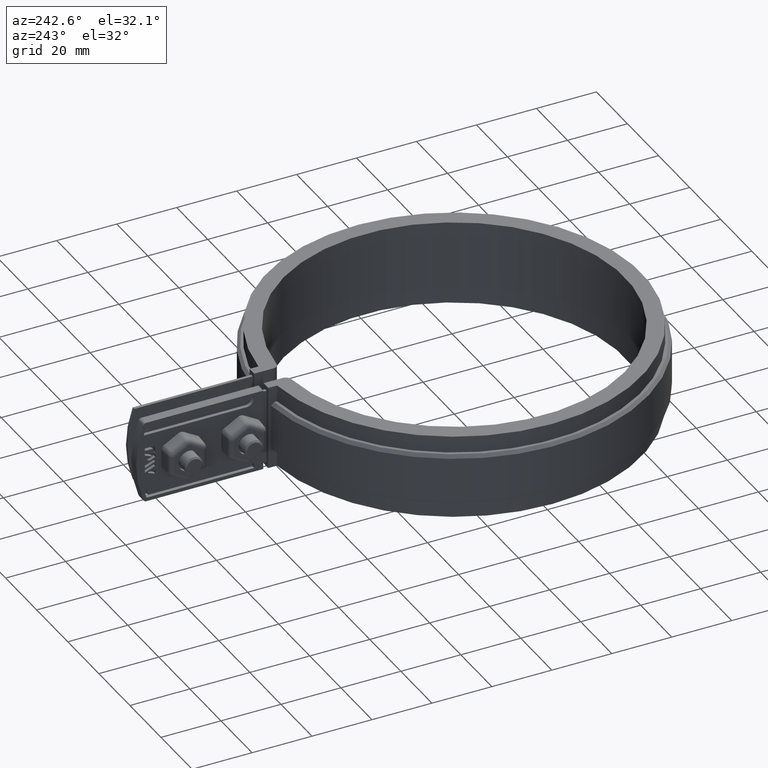
[diagram: clean part render]
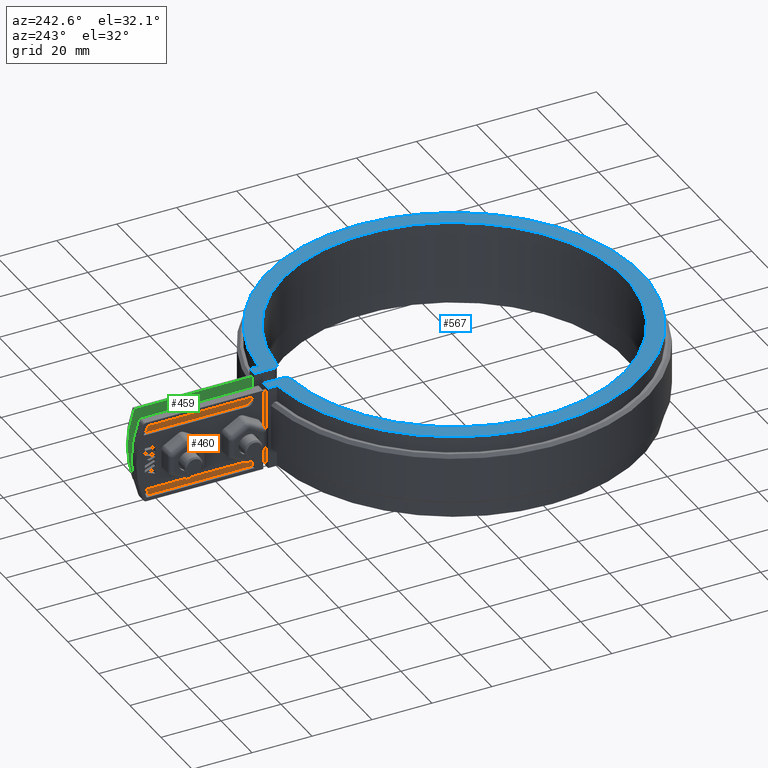
[diagram: same view with three faces highlighted in distinct colors, each labeled with its STEP entity id]
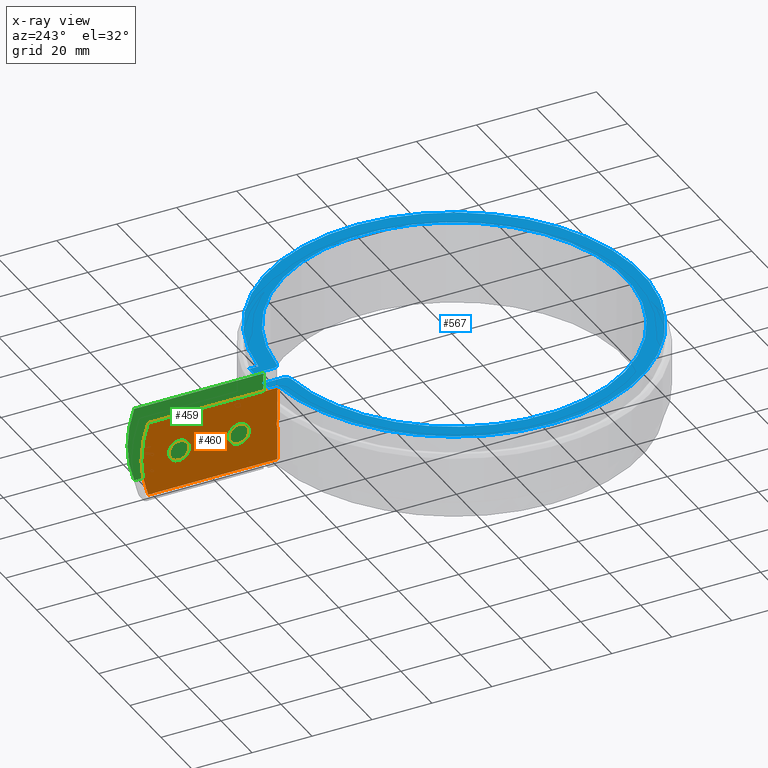
[diagram: x-ray of the same camera — body ghosted, the three highlighted faces saturated]
A machine part, auxiliary view with three faces highlighted in distinct colors.
The next image is the same camera in x-ray (body ghosted, the three faces saturated) — at least one of them is partly hidden behind the body in this view.
Their STEP definitions:

[orange] entity #460 — the highlighted planar face has unit normal (-1, 0, 0).
#460 = ADVANCED_FACE( '', ( #819, #820, #821 ), #822, .T. );
#819 = FACE_OUTER_BOUND( '', #1584, .T. );
#820 = FACE_BOUND( '', #1585, .T. );
#821 = FACE_BOUND( '', #1586, .T. );
#822 = PLANE( '', #1587 );
#1584 = EDGE_LOOP( '', ( #3172, #3173, #3174, #3175, #3176, #3177 ) );
#1585 = EDGE_LOOP( '', ( #3178 ) );
#1586 = EDGE_LOOP( '', ( #3179 ) );
#1587 = AXIS2_PLACEMENT_3D( '', #3180, #3181, #3182 );
#3172 = ORIENTED_EDGE( '', *, *, #6956, .F. );
#3173 = ORIENTED_EDGE( '', *, *, #6957, .T. );
#3174 = ORIENTED_EDGE( '', *, *, #6958, .F. );
#3175 = ORIENTED_EDGE( '', *, *, #6959, .T. );
#3176 = ORIENTED_EDGE( '', *, *, #6960, .T. );
#3177 = ORIENTED_EDGE( '', *, *, #6961, .T. );
#3178 = ORIENTED_EDGE( '', *, *, #6962, .T. );
#3179 = ORIENTED_EDGE( '', *, *, #6963, .T. );
#3180 = CARTESIAN_POINT( '', ( -4.99999999999999, 106.901303715507, -12.5000000000000 ) );
#3181 = DIRECTION( '', ( -1.00000000000000, 6.13499765894237E-017, 0.000000000000000 ) );
#3182 = DIRECTION( '', ( 6.13499765894237E-017, 1.00000000000000, 0.000000000000000 ) );
#6956 = EDGE_CURVE( '', #7905, #7906, #7907, .T. );
#6957 = EDGE_CURVE( '', #7905, #7908, #7909, .T. );
#6958 = EDGE_CURVE( '', #7910, #7908, #7911, .T. );
#6959 = EDGE_CURVE( '', #7910, #7912, #7913, .T. );
#6960 = EDGE_CURVE( '', #7912, #7914, #7915, .T. );
#6961 = EDGE_CURVE( '', #7914, #7906, #7916, .T. );
#6962 = EDGE_CURVE( '', #7917, #7917, #7918, .F. );
#6963 = EDGE_CURVE( '', #7919, #7919, #7920, .F. );
#7905 = VERTEX_POINT( '', #9478 );
#7906 = VERTEX_POINT( '', #9479 );
#7907 = B_SPLINE_CURVE_WITH_KNOTS( '', 3, ( #9480, #9481, #9482, #9483, #9484, #9485, #9486, #9487 ), .UNSPECIFIED., .F., .F., ( 4, 2, 2, 4 ), ( 6.50521303491303E-019, 0.00150022658167004, 0.00225033987250506, 0.00300045316334007 ), .UNSPECIFIED. );
#7908 = VERTEX_POINT( '', #9488 );
#7909 = LINE( '', #9489, #9490 );
#7910 = VERTEX_POINT( '', #9491 );
#7911 = LINE( '', #9492, #9493 );
#7912 = VERTEX_POINT( '', #9494 );
#7913 = CIRCLE( '', #9495, 36.0000000000000 );
#7914 = VERTEX_POINT( '', #9496 );
#7915 = LINE( '', #9497, #9498 );
#7916 = LINE( '', #9499, #9500 );
#7917 = VERTEX_POINT( '', #9501 );
#7918 = CIRCLE( '', #9502, 3.50000000000000 );
#7919 = VERTEX_POINT( '', #9503 );
#7920 = CIRCLE( '', #9504, 3.50000000000000 );
#9478 = CARTESIAN_POINT( '', ( -5.00000000000000, 61.6035713250458, 1.49472198519496 ) );
#9479 = CARTESIAN_POINT( '', ( -5.00000000000000, 61.6035713250458, -1.49472198519355 ) );
#9480 = CARTESIAN_POINT( '', ( -5.00000000000000, 61.6035713250458, 1.49472198519496 ) );
#9481 = CARTESIAN_POINT( '', ( -5.00000000000000, 61.7313907547541, 1.00388261558438 ) );
#9482 = CARTESIAN_POINT( '', ( -4.99999999999999, 61.7965111292352, 0.507584838703716 ) );
#9483 = CARTESIAN_POINT( '', ( -4.99999999999999, 61.7972551695541, -0.245300853509248 ) );
#9484 = CARTESIAN_POINT( '', ( -4.99999999999999, 61.7808408024274, -0.499093984818925 ) );
#9485 = CARTESIAN_POINT( '', ( -4.99999999999999, 61.7158527910326, -1.00096895216962 ) );
#9486 = CARTESIAN_POINT( '', ( -5.00000000000000, 61.6675116061577, -1.24918492290720 ) );
#9487 = CARTESIAN_POINT( '', ( -5.00000000000000, 61.6035713250458, -1.49472198519355 ) );
#9488 = CARTESIAN_POINT( '', ( -5.00000000000000, 61.6035713250458, 12.5000000000000 ) );
#9489 = CARTESIAN_POINT( '', ( -5.00000000000000, 61.6035713250458, -12.5000000000000 ) );
#9490 = VECTOR( '', #13860, 1000.00000000000 );
#9491 = CARTESIAN_POINT( '', ( -4.99999999999999, 104.661487364297, 12.5000000000000 ) );
#9492 = CARTESIAN_POINT( '', ( -4.99999999999999, 106.901303715507, 12.5000000000000 ) );
#9493 = VECTOR( '', #13861, 1000.00000000000 );
#9494 = CARTESIAN_POINT( '', ( -4.99999999999999, 104.661487364297, -12.5000000000000 ) );
#9495 = AXIS2_PLACEMENT_3D( '', #13862, #13863, #13864 );
#9496 = CARTESIAN_POINT( '', ( -5.00000000000000, 61.6035713250458, -12.5000000000000 ) );
#9497 = CARTESIAN_POINT( '', ( -4.99999999999999, 106.901303715507, -12.5000000000000 ) );
#9498 = VECTOR( '', #13865, 1000.00000000000 );
#9499 = CARTESIAN_POINT( '', ( -5.00000000000000, 61.6035713250458, -12.5000000000000 ) );
#9500 = VECTOR( '', #13866, 1000.00000000000 );
#9501 = CARTESIAN_POINT( '', ( -4.99999999999999, 90.9013037155070, -1.73472347597681E-015 ) );
#9502 = AXIS2_PLACEMENT_3D( '', #13867, #13868, #13869 );
#9503 = CARTESIAN_POINT( '', ( -4.99999999999999, 70.9013037155070, -1.73472347597681E-015 ) );
#9504 = AXIS2_PLACEMENT_3D( '', #13870, #13871, #13872 );
#13860 = DIRECTION( '', ( 0.000000000000000, 0.000000000000000, 1.00000000000000 ) );
#13861 = DIRECTION( '', ( -6.13499765894237E-017, -1.00000000000000, 0.000000000000000 ) );
#13862 = CARTESIAN_POINT( '', ( -5.00000000000000, 70.9013037155070, 0.000000000000000 ) );
#13863 = DIRECTION( '', ( -1.00000000000000, 6.13499765894237E-017, 0.000000000000000 ) );
#13864 = DIRECTION( '', ( -6.13499765894237E-017, -1.00000000000000, 0.000000000000000 ) );
#13865 = DIRECTION( '', ( -6.13499765894237E-017, -1.00000000000000, 0.000000000000000 ) );
#13866 = DIRECTION( '', ( 0.000000000000000, 0.000000000000000, 1.00000000000000 ) );
#13867 = CARTESIAN_POINT( '', ( -4.99999999999999, 94.4013037155071, -1.73472347597681E-015 ) );
#13868 = DIRECTION( '', ( -1.00000000000000, 6.13499765894237E-017, 0.000000000000000 ) );
#13869 = DIRECTION( '', ( -6.13499765894237E-017, -1.00000000000000, 0.000000000000000 ) );
#13870 = CARTESIAN_POINT( '', ( -4.99999999999999, 74.4013037155070, -1.73472347597681E-015 ) );
#13871 = DIRECTION( '', ( -1.00000000000000, 6.13499765894237E-017, 0.000000000000000 ) );
#13872 = DIRECTION( '', ( -6.13499765894237E-017, -1.00000000000000, 0.000000000000000 ) );

[blue] entity #567 — the highlighted planar face has unit normal (0, 0, -1).
#567 = ADVANCED_FACE( '', ( #1048 ), #1049, .F. );
#1048 = FACE_OUTER_BOUND( '', #2367, .T. );
#1049 = PLANE( '', #2368 );
#2367 = EDGE_LOOP( '', ( #4973, #4974, #4975, #4976, #4977, #4978, #4979, #4980, #4981, #4982 ) );
#2368 = AXIS2_PLACEMENT_3D( '', #4983, #4984, #4985 );
#4973 = ORIENTED_EDGE( '', *, *, #7297, .T. );
#4974 = ORIENTED_EDGE( '', *, *, #7287, .T. );
#4975 = ORIENTED_EDGE( '', *, *, #7237, .T. );
#4976 = ORIENTED_EDGE( '', *, *, #7245, .T. );
#4977 = ORIENTED_EDGE( '', *, *, #7226, .T. );
#4978 = ORIENTED_EDGE( '', *, *, #7253, .T. );
#4979 = ORIENTED_EDGE( '', *, *, #7298, .T. );
#4980 = ORIENTED_EDGE( '', *, *, #7200, .T. );
#4981 = ORIENTED_EDGE( '', *, *, #7299, .T. );
#4982 = ORIENTED_EDGE( '', *, *, #7300, .T. );
#4983 = CARTESIAN_POINT( '', ( 5.23473201317391, 60.6634495591627, 14.0000000000000 ) );
#4984 = DIRECTION( '', ( 0.000000000000000, 0.000000000000000, -1.00000000000000 ) );
#4985 = DIRECTION( '', ( 0.112903225806450, 0.993605989113642, 0.000000000000000 ) );
#7200 = EDGE_CURVE( '', #8329, #8330, #8331, .T. );
#7226 = EDGE_CURVE( '', #8368, #8366, #8369, .T. );
#7237 = EDGE_CURVE( '', #8390, #8388, #8391, .T. );
#7245 = EDGE_CURVE( '', #8388, #8368, #8404, .T. );
#7253 = EDGE_CURVE( '', #8366, #8416, #8418, .T. );
#7287 = EDGE_CURVE( '', #8472, #8390, #8473, .T. );
#7297 = EDGE_CURVE( '', #8487, #8472, #8488, .T. );
#7298 = EDGE_CURVE( '', #8416, #8329, #8489, .T. );
#7299 = EDGE_CURVE( '', #8330, #8490, #8491, .T. );
#7300 = EDGE_CURVE( '', #8490, #8487, #8492, .T. );
#8329 = VERTEX_POINT( '', #12084 );
#8330 = VERTEX_POINT( '', #12085 );
#8331 = CIRCLE( '', #12086, 2.00000000000000 );
#8366 = VERTEX_POINT( '', #12144 );
#8368 = VERTEX_POINT( '', #12147 );
#8369 = LINE( '', #12148, #12149 );
#8388 = VERTEX_POINT( '', #12183 );
#8390 = VERTEX_POINT( '', #12186 );
#8391 = LINE( '', #12187, #12188 );
#8404 = CIRCLE( '', #12204, 62.5000000000000 );
#8416 = VERTEX_POINT( '', #12217 );
#8418 = LINE( '', #12220, #12221 );
#8472 = VERTEX_POINT( '', #12304 );
#8473 = LINE( '', #12305, #12306 );
#8487 = VERTEX_POINT( '', #12327 );
#8488 = LINE( '', #12328, #12329 );
#8489 = LINE( '', #12330, #12331 );
#8490 = VERTEX_POINT( '', #12332 );
#8491 = CIRCLE( '', #12333, 57.0000000000000 );
#8492 = CIRCLE( '', #12334, 2.00000000000000 );
#12084 = CARTESIAN_POINT( '', ( 3.00000000000000, 58.7877538267963, 14.0000000000000 ) );
#12085 = CARTESIAN_POINT( '', ( 4.83050847457626, 56.7949486123287, 14.0000000000000 ) );
#12086 = AXIS2_PLACEMENT_3D( '', #14096, #14097, #14098 );
#12144 = CARTESIAN_POINT( '', ( 6.00000000000000, 65.1500000000000, 14.0000000000000 ) );
#12147 = CARTESIAN_POINT( '', ( 6.00000000000003, 62.2113333726259, 14.0000000000000 ) );
#12148 = CARTESIAN_POINT( '', ( 6.00000000000000, 62.2113333726259, 14.0000000000000 ) );
#12149 = VECTOR( '', #14129, 1000.00000000000 );
#12183 = CARTESIAN_POINT( '', ( -6.00000000000000, 62.2113333726259, 14.0000000000000 ) );
#12186 = CARTESIAN_POINT( '', ( -5.99999999999999, 65.1500000000000, 14.0000000000000 ) );
#12187 = CARTESIAN_POINT( '', ( -6.00000000000000, 65.1500000000000, 14.0000000000000 ) );
#12188 = VECTOR( '', #14137, 1000.00000000000 );
#12204 = AXIS2_PLACEMENT_3D( '', #14153, #14154, #14155 );
#12217 = CARTESIAN_POINT( '', ( 3.00000000000001, 65.1500000000000, 14.0000000000000 ) );
#12220 = CARTESIAN_POINT( '', ( 6.00000000000003, 65.1500000000000, 14.0000000000000 ) );
#12221 = VECTOR( '', #14173, 1000.00000000000 );
#12304 = CARTESIAN_POINT( '', ( -2.99999999999995, 65.1500000000000, 14.0000000000000 ) );
#12305 = CARTESIAN_POINT( '', ( -4.99999999999999, 65.1500000000000, 14.0000000000000 ) );
#12306 = VECTOR( '', #14230, 1000.00000000000 );
#12327 = CARTESIAN_POINT( '', ( -2.99999999999995, 58.7877538267963, 14.0000000000000 ) );
#12328 = CARTESIAN_POINT( '', ( -2.99999999999995, 58.7877538267963, 14.0000000000000 ) );
#12329 = VECTOR( '', #14244, 1000.00000000000 );
#12330 = CARTESIAN_POINT( '', ( 3.00000000000000, 65.1500000000000, 14.0000000000000 ) );
#12331 = VECTOR( '', #14245, 1000.00000000000 );
#12332 = CARTESIAN_POINT( '', ( -4.83050847457618, 56.7949486123287, 14.0000000000000 ) );
#12333 = AXIS2_PLACEMENT_3D( '', #14246, #14247, #14248 );
#12334 = AXIS2_PLACEMENT_3D( '', #14249, #14250, #14251 );
#14096 = CARTESIAN_POINT( '', ( 5.00000000000000, 58.7877538267963, 14.0000000000000 ) );
#14097 = DIRECTION( '', ( 0.000000000000000, 0.000000000000000, 1.00000000000000 ) );
#14098 = DIRECTION( '', ( -1.00000000000000, 1.23512311489549E-015, 0.000000000000000 ) );
#14129 = DIRECTION( '', ( 4.16333634234434E-017, 1.00000000000000, 0.000000000000000 ) );
#14137 = DIRECTION( '', ( -4.16333634234434E-017, -1.00000000000000, 0.000000000000000 ) );
#14153 = CARTESIAN_POINT( '', ( -8.67361737988404E-016, -6.93889390390723E-015, 14.0000000000000 ) );
#14154 = DIRECTION( '', ( 0.000000000000000, 0.000000000000000, 1.00000000000000 ) );
#14155 = DIRECTION( '', ( 1.00000000000000, -4.16333634234434E-017, 0.000000000000000 ) );
#14173 = DIRECTION( '', ( -1.00000000000000, 1.38777878078145E-017, 0.000000000000000 ) );
#14230 = DIRECTION( '', ( -1.00000000000000, 1.38777878078145E-017, 0.000000000000000 ) );
#14244 = DIRECTION( '', ( 0.000000000000000, 1.00000000000000, 0.000000000000000 ) );
#14245 = DIRECTION( '', ( 0.000000000000000, -1.00000000000000, 0.000000000000000 ) );
#14246 = CARTESIAN_POINT( '', ( 2.60208521396521E-015, 3.46944695195361E-014, 14.0000000000000 ) );
#14247 = DIRECTION( '', ( 0.000000000000000, 0.000000000000000, -1.00000000000000 ) );
#14248 = DIRECTION( '', ( 1.00000000000000, 0.000000000000000, 0.000000000000000 ) );
#14249 = CARTESIAN_POINT( '', ( -4.99999999999995, 58.7877538267963, 14.0000000000000 ) );
#14250 = DIRECTION( '', ( 0.000000000000000, 0.000000000000000, 1.00000000000000 ) );
#14251 = DIRECTION( '', ( 1.00000000000000, -1.19348975147204E-015, 0.000000000000000 ) );

[green] entity #459 — the highlighted planar face has unit normal (-1, -0, 0).
#459 = ADVANCED_FACE( '', ( #815, #816, #817 ), #818, .T. );
#815 = FACE_BOUND( '', #1580, .T. );
#816 = FACE_BOUND( '', #1581, .T. );
#817 = FACE_OUTER_BOUND( '', #1582, .T. );
#818 = PLANE( '', #1583 );
#1580 = EDGE_LOOP( '', ( #3163 ) );
#1581 = EDGE_LOOP( '', ( #3164 ) );
#1582 = EDGE_LOOP( '', ( #3165, #3166, #3167, #3168 ) );
#1583 = AXIS2_PLACEMENT_3D( '', #3169, #3170, #3171 );
#3163 = ORIENTED_EDGE( '', *, *, #6950, .T. );
#3164 = ORIENTED_EDGE( '', *, *, #6951, .T. );
#3165 = ORIENTED_EDGE( '', *, *, #6952, .T. );
#3166 = ORIENTED_EDGE( '', *, *, #6953, .F. );
#3167 = ORIENTED_EDGE( '', *, *, #6954, .T. );
#3168 = ORIENTED_EDGE( '', *, *, #6955, .T. );
#3169 = CARTESIAN_POINT( '', ( 4.00000000000000, 106.901303715507, -12.5000000000000 ) );
#3170 = DIRECTION( '', ( -1.00000000000000, -6.13499765894237E-017, 0.000000000000000 ) );
#3171 = DIRECTION( '', ( -6.13499765894237E-017, 1.00000000000000, 0.000000000000000 ) );
#6950 = EDGE_CURVE( '', #7893, #7893, #7894, .F. );
#6951 = EDGE_CURVE( '', #7895, #7895, #7896, .F. );
#6952 = EDGE_CURVE( '', #7897, #7898, #7899, .T. );
#6953 = EDGE_CURVE( '', #7900, #7898, #7901, .T. );
#6954 = EDGE_CURVE( '', #7900, #7902, #7903, .T. );
#6955 = EDGE_CURVE( '', #7902, #7897, #7904, .T. );
#7893 = VERTEX_POINT( '', #9463 );
#7894 = CIRCLE( '', #9464, 3.50000000000000 );
#7895 = VERTEX_POINT( '', #9465 );
#7896 = CIRCLE( '', #9466, 3.50000000000000 );
#7897 = VERTEX_POINT( '', #9467 );
#7898 = VERTEX_POINT( '', #9468 );
#7899 = LINE( '', #9469, #9470 );
#7900 = VERTEX_POINT( '', #9471 );
#7901 = LINE( '', #9472, #9473 );
#7902 = VERTEX_POINT( '', #9474 );
#7903 = CIRCLE( '', #9475, 36.0000000000000 );
#7904 = LINE( '', #9476, #9477 );
#9463 = CARTESIAN_POINT( '', ( 4.00000000000000, 70.9013037155070, -1.73472347597681E-015 ) );
#9464 = AXIS2_PLACEMENT_3D( '', #13848, #13849, #13850 );
#9465 = CARTESIAN_POINT( '', ( 4.00000000000000, 90.9013037155070, -1.73472347597681E-015 ) );
#9466 = AXIS2_PLACEMENT_3D( '', #13851, #13852, #13853 );
#9467 = CARTESIAN_POINT( '', ( 4.00000000000000, 61.6035713250458, -12.5000000000000 ) );
#9468 = CARTESIAN_POINT( '', ( 4.00000000000000, 61.6035713250458, 12.5000000000000 ) );
#9469 = CARTESIAN_POINT( '', ( 4.00000000000000, 61.6035713250458, -12.5000000000000 ) );
#9470 = VECTOR( '', #13854, 1000.00000000000 );
#9471 = CARTESIAN_POINT( '', ( 4.00000000000000, 104.661487364297, 12.5000000000000 ) );
#9472 = CARTESIAN_POINT( '', ( 4.00000000000000, 106.901303715507, 12.5000000000000 ) );
#9473 = VECTOR( '', #13855, 1000.00000000000 );
#9474 = CARTESIAN_POINT( '', ( 4.00000000000000, 104.661487364297, -12.5000000000000 ) );
#9475 = AXIS2_PLACEMENT_3D( '', #13856, #13857, #13858 );
#9476 = CARTESIAN_POINT( '', ( 4.00000000000000, 106.901303715507, -12.5000000000000 ) );
#9477 = VECTOR( '', #13859, 1000.00000000000 );
#13848 = CARTESIAN_POINT( '', ( 4.00000000000000, 74.4013037155070, -1.73472347597681E-015 ) );
#13849 = DIRECTION( '', ( -1.00000000000000, -6.13499765894237E-017, 0.000000000000000 ) );
#13850 = DIRECTION( '', ( 6.13499765894237E-017, -1.00000000000000, 0.000000000000000 ) );
#13851 = CARTESIAN_POINT( '', ( 4.00000000000000, 94.4013037155071, -1.73472347597681E-015 ) );
#13852 = DIRECTION( '', ( -1.00000000000000, -6.13499765894237E-017, 0.000000000000000 ) );
#13853 = DIRECTION( '', ( 6.13499765894237E-017, -1.00000000000000, 0.000000000000000 ) );
#13854 = DIRECTION( '', ( 0.000000000000000, 0.000000000000000, 1.00000000000000 ) );
#13855 = DIRECTION( '', ( 6.13499765894237E-017, -1.00000000000000, 0.000000000000000 ) );
#13856 = CARTESIAN_POINT( '', ( 4.00000000000000, 70.9013037155070, 0.000000000000000 ) );
#13857 = DIRECTION( '', ( -1.00000000000000, -6.13499765894237E-017, 0.000000000000000 ) );
#13858 = DIRECTION( '', ( 6.13499765894237E-017, -1.00000000000000, 0.000000000000000 ) );
#13859 = DIRECTION( '', ( 6.13499765894237E-017, -1.00000000000000, 0.000000000000000 ) );